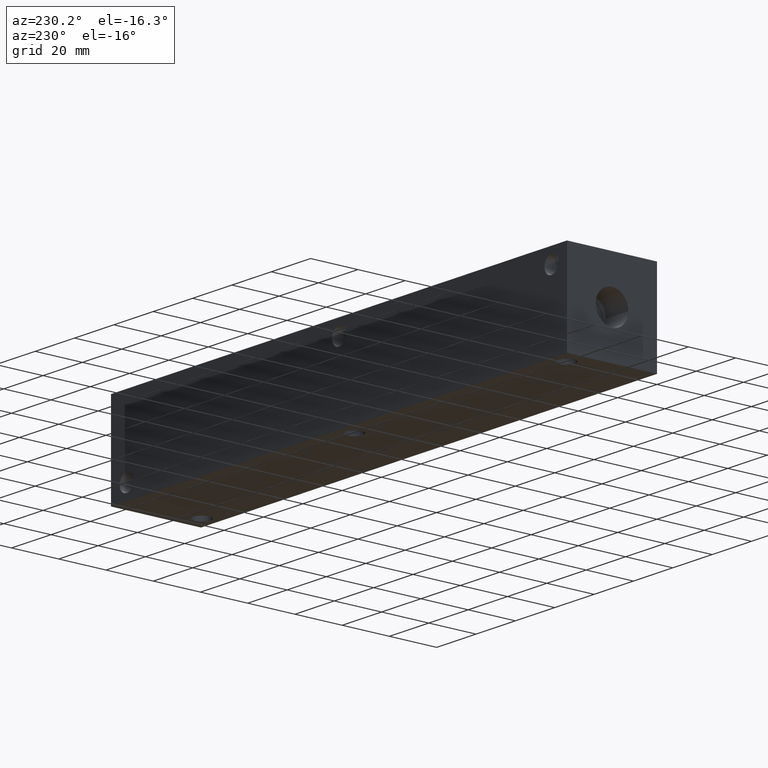
[diagram: clean part render]
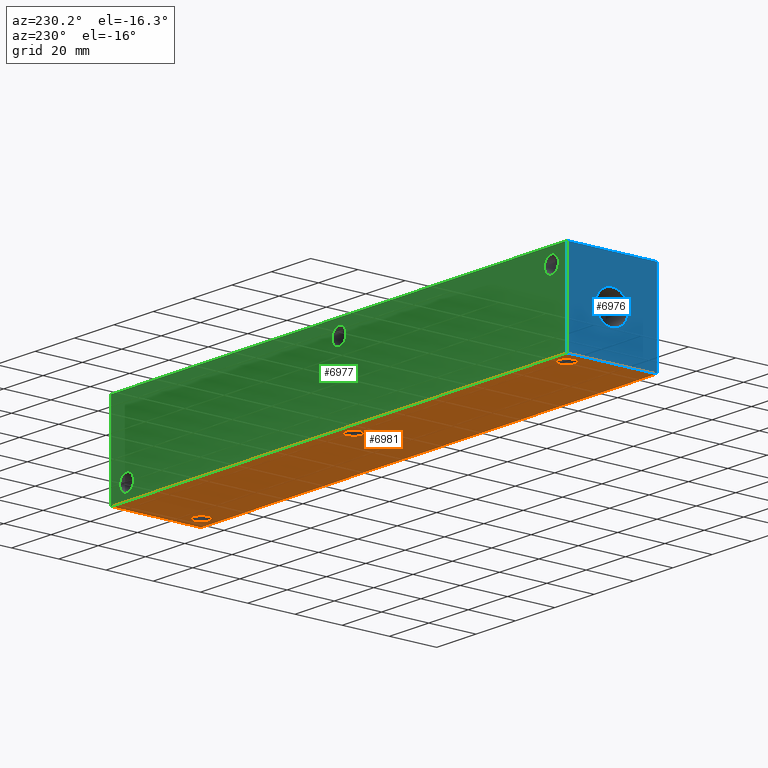
[diagram: same view with three faces highlighted in distinct colors, each labeled with its STEP entity id]
A machine part, auxiliary view with three faces highlighted in distinct colors.
Their STEP definitions:

[orange] entity #6981 — the highlighted planar face has unit normal (0, 0, 1).
#89=CIRCLE('',#7243,3.5687);
#90=CIRCLE('',#7245,3.5687);
#91=CIRCLE('',#7247,3.5687);
#190=FACE_BOUND('',#1167,.T.);
#191=FACE_BOUND('',#1168,.T.);
#192=FACE_BOUND('',#1169,.T.);
#404=PLANE('',#7329);
#758=FACE_OUTER_BOUND('',#1166,.T.);
#1166=EDGE_LOOP('',(#6220,#6221,#6222,#6223));
#1167=EDGE_LOOP('',(#6224));
#1168=EDGE_LOOP('',(#6225));
#1169=EDGE_LOOP('',(#6226));
#1823=LINE('',#11984,#2484);
#1826=LINE('',#11989,#2487);
#1828=LINE('',#11993,#2489);
#1830=LINE('',#11996,#2491);
#2484=VECTOR('',#8643,10.);
#2487=VECTOR('',#8648,10.);
#2489=VECTOR('',#8652,10.);
#2491=VECTOR('',#8656,10.);
#3291=VERTEX_POINT('',#11818);
#3292=VERTEX_POINT('',#11822);
#3293=VERTEX_POINT('',#11826);
#3346=VERTEX_POINT('',#11982);
#3347=VERTEX_POINT('',#11983);
#3348=VERTEX_POINT('',#11988);
#3349=VERTEX_POINT('',#11992);
#4228=EDGE_CURVE('',#3291,#3291,#89,.T.);
#4230=EDGE_CURVE('',#3292,#3292,#90,.T.);
#4232=EDGE_CURVE('',#3293,#3293,#91,.T.);
#4301=EDGE_CURVE('',#3346,#3347,#1823,.T.);
#4304=EDGE_CURVE('',#3348,#3346,#1826,.T.);
#4306=EDGE_CURVE('',#3349,#3348,#1828,.T.);
#4308=EDGE_CURVE('',#3347,#3349,#1830,.T.);
#6220=ORIENTED_EDGE('',*,*,#4308,.F.);
#6221=ORIENTED_EDGE('',*,*,#4301,.F.);
#6222=ORIENTED_EDGE('',*,*,#4304,.F.);
#6223=ORIENTED_EDGE('',*,*,#4306,.F.);
#6224=ORIENTED_EDGE('',*,*,#4228,.T.);
#6225=ORIENTED_EDGE('',*,*,#4230,.T.);
#6226=ORIENTED_EDGE('',*,*,#4232,.T.);
#6981=ADVANCED_FACE('',(#758,#190,#191,#192),#404,.F.);
#7243=AXIS2_PLACEMENT_3D('',#11820,#8453,#8454);
#7245=AXIS2_PLACEMENT_3D('',#11824,#8458,#8459);
#7247=AXIS2_PLACEMENT_3D('',#11828,#8463,#8464);
#7329=AXIS2_PLACEMENT_3D('',#11998,#8659,#8660);
#8453=DIRECTION('center_axis',(0.,0.,1.));
#8454=DIRECTION('ref_axis',(1.,0.,0.));
#8458=DIRECTION('center_axis',(0.,0.,1.));
#8459=DIRECTION('ref_axis',(1.,0.,0.));
#8463=DIRECTION('center_axis',(0.,0.,1.));
#8464=DIRECTION('ref_axis',(1.,0.,0.));
#8643=DIRECTION('',(0.,-1.,0.));
#8648=DIRECTION('',(-1.,0.,0.));
#8652=DIRECTION('',(0.,1.,0.));
#8656=DIRECTION('',(1.,0.,0.));
#8659=DIRECTION('center_axis',(0.,0.,1.));
#8660=DIRECTION('ref_axis',(1.,0.,0.));
#11818=CARTESIAN_POINT('',(112.3061,31.75,0.));
#11820=CARTESIAN_POINT('Origin',(115.8748,31.75,0.));
#11822=CARTESIAN_POINT('',(4.3561,31.75,0.));
#11824=CARTESIAN_POINT('Origin',(7.9248,31.75,0.));
#11826=CARTESIAN_POINT('',(220.2561,6.35,0.));
#11828=CARTESIAN_POINT('Origin',(223.8248,6.35,0.));
#11982=CARTESIAN_POINT('',(0.,38.1,0.));
#11983=CARTESIAN_POINT('',(0.,0.,0.));
#11984=CARTESIAN_POINT('',(0.,38.1,0.));
#11988=CARTESIAN_POINT('',(231.775,38.1,0.));
#11989=CARTESIAN_POINT('',(231.775,38.1,0.));
#11992=CARTESIAN_POINT('',(231.775,0.,0.));
#11993=CARTESIAN_POINT('',(231.775,0.,0.));
#11996=CARTESIAN_POINT('',(0.,0.,0.));
#11998=CARTESIAN_POINT('Origin',(115.8875,19.05,0.));

[blue] entity #6976 — the highlighted planar face has unit normal (-1, 0, 0).
#134=CIRCLE('',#7321,6.9342);
#135=CIRCLE('',#7322,6.9342);
#182=FACE_BOUND('',#1154,.T.);
#399=PLANE('',#7324);
#753=FACE_OUTER_BOUND('',#1153,.T.);
#1153=EDGE_LOOP('',(#6188,#6189,#6190,#6191));
#1154=EDGE_LOOP('',(#6192,#6193));
#1409=LINE('',#10818,#2070);
#1823=LINE('',#11984,#2484);
#1824=LINE('',#11985,#2485);
#1825=LINE('',#11986,#2486);
#2070=VECTOR('',#7685,10.);
#2484=VECTOR('',#8643,10.);
#2485=VECTOR('',#8644,10.);
#2486=VECTOR('',#8645,10.);
#2992=VERTEX_POINT('',#10811);
#2995=VERTEX_POINT('',#10816);
#3344=VERTEX_POINT('',#11974);
#3345=VERTEX_POINT('',#11975);
#3346=VERTEX_POINT('',#11982);
#3347=VERTEX_POINT('',#11983);
#3785=EDGE_CURVE('',#2995,#2992,#1409,.T.);
#4297=EDGE_CURVE('',#3344,#3345,#134,.T.);
#4298=EDGE_CURVE('',#3345,#3344,#135,.T.);
#4301=EDGE_CURVE('',#3346,#3347,#1823,.T.);
#4302=EDGE_CURVE('',#3347,#2992,#1824,.T.);
#4303=EDGE_CURVE('',#3346,#2995,#1825,.T.);
#6188=ORIENTED_EDGE('',*,*,#4301,.T.);
#6189=ORIENTED_EDGE('',*,*,#4302,.T.);
#6190=ORIENTED_EDGE('',*,*,#3785,.F.);
#6191=ORIENTED_EDGE('',*,*,#4303,.F.);
#6192=ORIENTED_EDGE('',*,*,#4297,.T.);
#6193=ORIENTED_EDGE('',*,*,#4298,.T.);
#6976=ADVANCED_FACE('',(#753,#182),#399,.T.);
#7321=AXIS2_PLACEMENT_3D('',#11976,#8633,#8634);
#7322=AXIS2_PLACEMENT_3D('',#11977,#8635,#8636);
#7324=AXIS2_PLACEMENT_3D('',#11981,#8641,#8642);
#7685=DIRECTION('',(0.,-1.,0.));
#8633=DIRECTION('center_axis',(1.,0.,0.));
#8634=DIRECTION('ref_axis',(0.,1.,0.));
#8635=DIRECTION('center_axis',(1.,0.,0.));
#8636=DIRECTION('ref_axis',(0.,1.,0.));
#8641=DIRECTION('center_axis',(-1.,0.,0.));
#8642=DIRECTION('ref_axis',(0.,-1.,0.));
#8643=DIRECTION('',(0.,-1.,0.));
#8644=DIRECTION('',(0.,0.,1.));
#8645=DIRECTION('',(0.,0.,1.));
#10811=CARTESIAN_POINT('',(0.,0.,38.1));
#10816=CARTESIAN_POINT('',(0.,38.1,38.1));
#10818=CARTESIAN_POINT('',(0.,38.1,38.1));
#11974=CARTESIAN_POINT('',(0.,25.9842,19.05));
#11975=CARTESIAN_POINT('',(0.,12.1158,19.05));
#11976=CARTESIAN_POINT('Origin',(0.,19.05,19.05));
#11977=CARTESIAN_POINT('Origin',(0.,19.05,19.05));
#11981=CARTESIAN_POINT('Origin',(0.,38.1,0.));
#11982=CARTESIAN_POINT('',(0.,38.1,0.));
#11983=CARTESIAN_POINT('',(0.,0.,0.));
#11984=CARTESIAN_POINT('',(0.,38.1,0.));
#11985=CARTESIAN_POINT('',(0.,0.,0.));
#11986=CARTESIAN_POINT('',(0.,38.1,0.));

[green] entity #6977 — the highlighted planar face has unit normal (0, 1, 0).
#82=CIRCLE('',#7220,3.5687);
#85=CIRCLE('',#7229,3.5687);
#88=CIRCLE('',#7238,3.5687);
#183=FACE_BOUND('',#1156,.T.);
#184=FACE_BOUND('',#1157,.T.);
#185=FACE_BOUND('',#1158,.T.);
#400=PLANE('',#7325);
#754=FACE_OUTER_BOUND('',#1155,.T.);
#1155=EDGE_LOOP('',(#6194,#6195,#6196,#6197));
#1156=EDGE_LOOP('',(#6198));
#1157=EDGE_LOOP('',(#6199));
#1158=EDGE_LOOP('',(#6200));
#1408=LINE('',#10817,#2069);
#1825=LINE('',#11986,#2486);
#1826=LINE('',#11989,#2487);
#1827=LINE('',#11990,#2488);
#2069=VECTOR('',#7684,10.);
#2486=VECTOR('',#8645,10.);
#2487=VECTOR('',#8648,10.);
#2488=VECTOR('',#8649,10.);
#2994=VERTEX_POINT('',#10814);
#2995=VERTEX_POINT('',#10816);
#3280=VERTEX_POINT('',#11776);
#3285=VERTEX_POINT('',#11792);
#3290=VERTEX_POINT('',#11808);
#3346=VERTEX_POINT('',#11982);
#3348=VERTEX_POINT('',#11988);
#3784=EDGE_CURVE('',#2994,#2995,#1408,.T.);
#4205=EDGE_CURVE('',#3280,#3280,#82,.T.);
#4214=EDGE_CURVE('',#3285,#3285,#85,.T.);
#4223=EDGE_CURVE('',#3290,#3290,#88,.T.);
#4303=EDGE_CURVE('',#3346,#2995,#1825,.T.);
#4304=EDGE_CURVE('',#3348,#3346,#1826,.T.);
#4305=EDGE_CURVE('',#3348,#2994,#1827,.T.);
#6194=ORIENTED_EDGE('',*,*,#4304,.T.);
#6195=ORIENTED_EDGE('',*,*,#4303,.T.);
#6196=ORIENTED_EDGE('',*,*,#3784,.F.);
#6197=ORIENTED_EDGE('',*,*,#4305,.F.);
#6198=ORIENTED_EDGE('',*,*,#4205,.T.);
#6199=ORIENTED_EDGE('',*,*,#4214,.T.);
#6200=ORIENTED_EDGE('',*,*,#4223,.T.);
#6977=ADVANCED_FACE('',(#754,#183,#184,#185),#400,.T.);
#7220=AXIS2_PLACEMENT_3D('',#11778,#8399,#8400);
#7229=AXIS2_PLACEMENT_3D('',#11794,#8419,#8420);
#7238=AXIS2_PLACEMENT_3D('',#11810,#8439,#8440);
#7325=AXIS2_PLACEMENT_3D('',#11987,#8646,#8647);
#7684=DIRECTION('',(-1.,0.,0.));
#8399=DIRECTION('center_axis',(0.,-1.,0.));
#8400=DIRECTION('ref_axis',(1.,0.,0.));
#8419=DIRECTION('center_axis',(0.,-1.,0.));
#8420=DIRECTION('ref_axis',(1.,0.,0.));
#8439=DIRECTION('center_axis',(0.,-1.,0.));
#8440=DIRECTION('ref_axis',(1.,0.,0.));
#8645=DIRECTION('',(0.,0.,1.));
#8646=DIRECTION('center_axis',(0.,1.,0.));
#8647=DIRECTION('ref_axis',(-1.,0.,0.));
#8648=DIRECTION('',(-1.,0.,0.));
#8649=DIRECTION('',(0.,0.,1.));
#10814=CARTESIAN_POINT('',(231.775,38.1,38.1));
#10816=CARTESIAN_POINT('',(0.,38.1,38.1));
#10817=CARTESIAN_POINT('',(231.775,38.1,38.1));
#11776=CARTESIAN_POINT('',(112.3061,38.1,31.75));
#11778=CARTESIAN_POINT('Origin',(115.8748,38.1,31.75));
#11792=CARTESIAN_POINT('',(4.3561,38.1,31.75));
#11794=CARTESIAN_POINT('Origin',(7.9248,38.1,31.75));
#11808=CARTESIAN_POINT('',(220.2561,38.1,6.35));
#11810=CARTESIAN_POINT('Origin',(223.8248,38.1,6.35));
#11982=CARTESIAN_POINT('',(0.,38.1,0.));
#11986=CARTESIAN_POINT('',(0.,38.1,0.));
#11987=CARTESIAN_POINT('Origin',(231.775,38.1,0.));
#11988=CARTESIAN_POINT('',(231.775,38.1,0.));
#11989=CARTESIAN_POINT('',(231.775,38.1,0.));
#11990=CARTESIAN_POINT('',(231.775,38.1,0.));